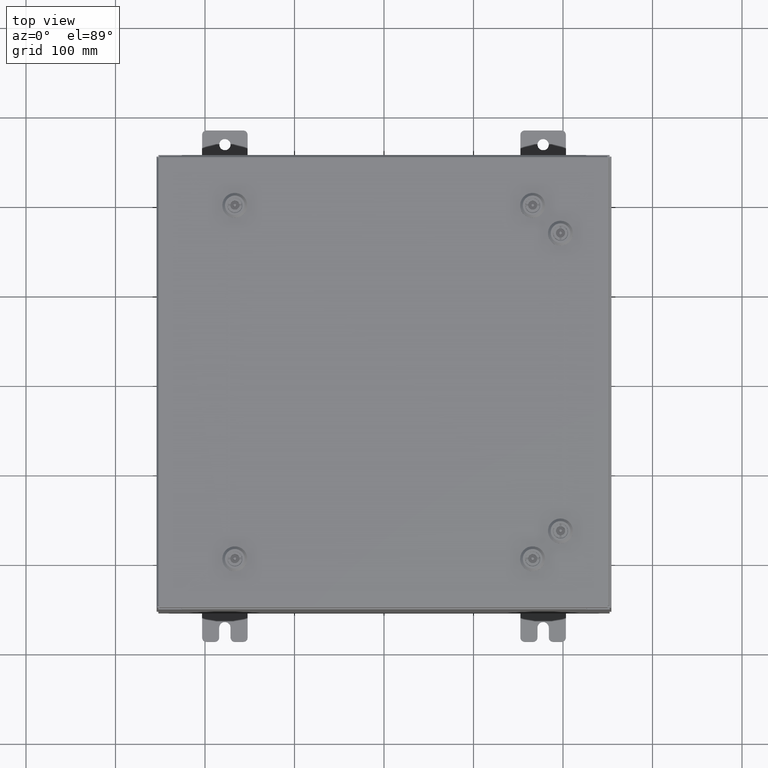
[diagram: clean part render]
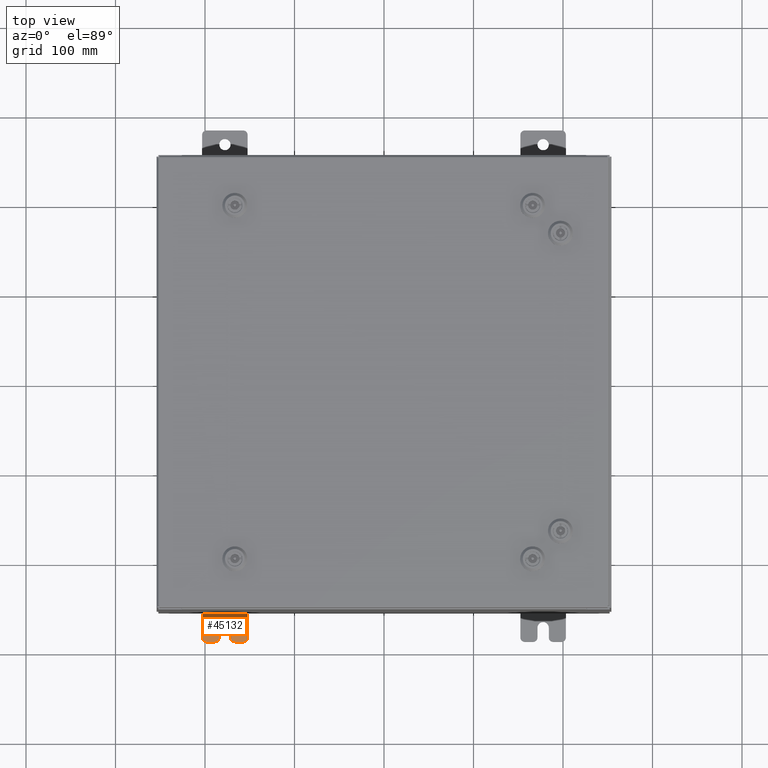
[diagram: same view with one face highlighted and labeled with its STEP entity id]
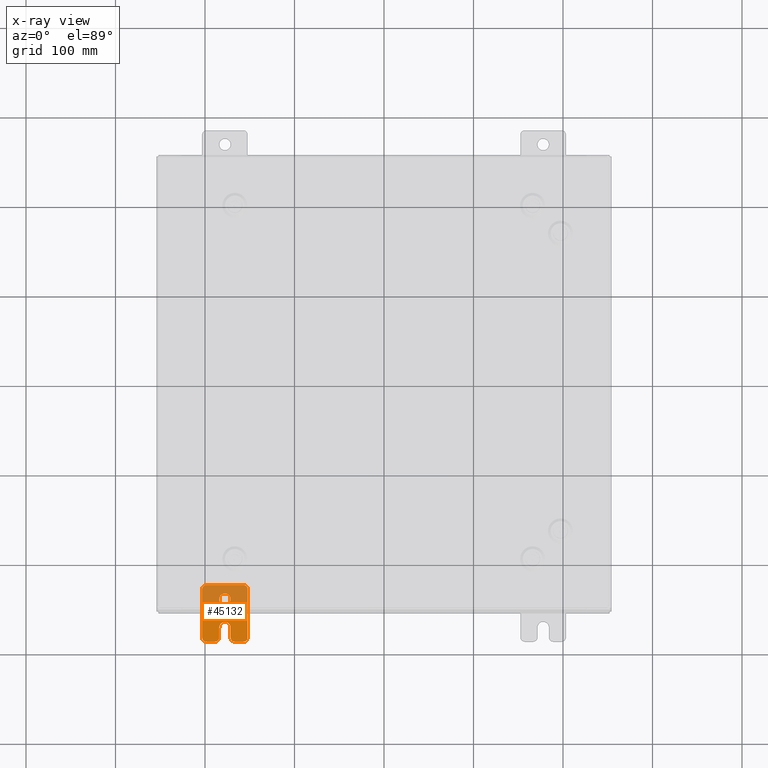
[diagram: x-ray of the same camera — body ghosted, the highlighted face saturated]
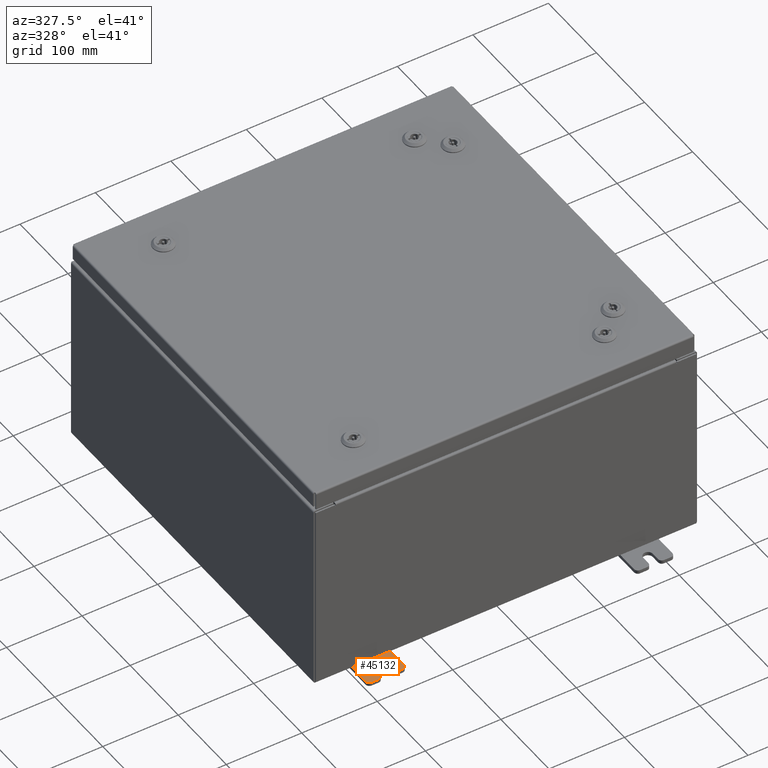
[diagram: same view with one face highlighted and labeled with its STEP entity id]
A machine part, top view. The second image highlights one B-rep face of the part: STEP entity #45132.
The next image is the same camera in x-ray: the body ghosted, the highlighted face saturated — about 50% of this face is hidden behind the body in this view.
A second angle (auxiliary view) of the same face is appended — the face is thin or edge-on in the first view.
In plain terms, the highlighted planar face has unit normal (0, 0, 1).
Its self-contained STEP definition (entity closure, byte-faithful):
#582 = LINE ( 'NONE', #5684, #26680 ) ;
#660 = ORIENTED_EDGE ( 'NONE', *, *, #15933, .F. ) ;
#927 = DIRECTION ( 'NONE',  ( 1.000000000000000000, 0.0000000000000000000, -0.0000000000000000000 ) ) ;
#1591 = VERTEX_POINT ( 'NONE', #61187 ) ;
#2158 = DIRECTION ( 'NONE',  ( 6.556435184794182400E-016, 1.000000000000000000, 0.0000000000000000000 ) ) ;
#2736 = EDGE_CURVE ( 'NONE', #20358, #1591, #57156, .T. ) ;
#3084 = EDGE_CURVE ( 'NONE', #11941, #46526, #61002, .T. ) ;
#3750 = ORIENTED_EDGE ( 'NONE', *, *, #44760, .T. ) ;
#4187 = EDGE_CURVE ( 'NONE', #36219, #38342, #30176, .T. ) ;
#4379 = CARTESIAN_POINT ( 'NONE',  ( 0.0000000000000000000, 1.249999999999994200, -1.000000000000010400 ) ) ;
#5429 = VERTEX_POINT ( 'NONE', #19488 ) ;
#5609 = CARTESIAN_POINT ( 'NONE',  ( 0.0000000000000000000, 0.0000000000000000000, 0.0000000000000000000 ) ) ;
#5684 = CARTESIAN_POINT ( 'NONE',  ( 4.780733988912460100E-016, -0.6249999999999993300, -0.2499999999999993900 ) ) ;
#5870 = CARTESIAN_POINT ( 'NONE',  ( 0.0000000000000000000, -1.250000000000003100, 0.4400000000000020000 ) ) ;
#6497 = DIRECTION ( 'NONE',  ( 1.000000000000000000, 0.0000000000000000000, -0.0000000000000000000 ) ) ;
#6809 = EDGE_CURVE ( 'NONE', #56834, #23097, #23786, .T. ) ;
#6860 = ORIENTED_EDGE ( 'NONE', *, *, #30997, .T. ) ;
#7862 = CARTESIAN_POINT ( 'NONE',  ( 0.0000000000000000000, -1.060000000000004100, -0.8100000000000050500 ) ) ;
#8036 = CARTESIAN_POINT ( 'NONE',  ( 4.039428427013647300E-016, 0.6249999999999992200, -9.783840404509077400E-018 ) ) ;
#8287 = AXIS2_PLACEMENT_3D ( 'NONE', #56460, #27102, #61410 ) ;
#9186 = VECTOR ( 'NONE', #22828, 39.37007874015748100 ) ;
#10315 = DIRECTION ( 'NONE',  ( 1.000000000000000000, 0.0000000000000000000, -0.0000000000000000000 ) ) ;
#10815 = CARTESIAN_POINT ( 'NONE',  ( 4.039428427013647300E-016, 0.6249999999999992200, -9.783840404509077400E-018 ) ) ;
#10928 = LINE ( 'NONE', #13450, #36994 ) ;
#11026 = CIRCLE ( 'NONE', #54267, 0.1900000000000011100 ) ;
#11368 = LINE ( 'NONE', #44679, #50445 ) ;
#11519 = VECTOR ( 'NONE', #32149, 39.37007874015748100 ) ;
#11557 = VERTEX_POINT ( 'NONE', #42396 ) ;
#11941 = VERTEX_POINT ( 'NONE', #12392 ) ;
#12392 = CARTESIAN_POINT ( 'NONE',  ( 4.168508244714285900E-016, 0.6249999999999992200, 0.2499999999999999200 ) ) ;
#12800 = AXIS2_PLACEMENT_3D ( 'NONE', #10815, #45069, #15764 ) ;
#13167 = AXIS2_PLACEMENT_3D ( 'NONE', #26065, #60374, #30958 ) ;
#13450 = CARTESIAN_POINT ( 'NONE',  ( 0.0000000000000000000, 1.249999999999997600, 0.9999999999999951200 ) ) ;
#14051 = DIRECTION ( 'NONE',  ( 0.0000000000000000000, 1.639108796198553600E-015, 1.000000000000000000 ) ) ;
#14120 = CARTESIAN_POINT ( 'NONE',  ( 0.0000000000000000000, -1.060000000000001200, 0.9999999999999988900 ) ) ;
#14599 = CARTESIAN_POINT ( 'NONE',  ( 0.0000000000000000000, 1.249999999999994700, -0.8100000000000092700 ) ) ;
#14879 = AXIS2_PLACEMENT_3D ( 'NONE', #14913, #34605, #39544 ) ;
#14913 = CARTESIAN_POINT ( 'NONE',  ( 0.0000000000000000000, -1.060000000000003400, -0.4400000000000005000 ) ) ;
#15340 = DIRECTION ( 'NONE',  ( 0.0000000000000000000, -1.639108796198553600E-015, -1.000000000000000000 ) ) ;
#15764 = DIRECTION ( 'NONE',  ( -5.163192708025533800E-017, 0.0000000000000000000, -1.000000000000000000 ) ) ;
#15933 = EDGE_CURVE ( 'NONE', #46526, #11941, #26413, .T. ) ;
#15976 = CARTESIAN_POINT ( 'NONE',  ( 1.928684683526964400E-016, -1.060000000000003400, -0.2499999999999994400 ) ) ;
#16119 = FACE_OUTER_BOUND ( 'NONE', #53799, .T. ) ;
#16210 = EDGE_CURVE ( 'NONE', #60360, #5429, #34791, .T. ) ;
#16421 = CIRCLE ( 'NONE', #39884, 0.1900000000000011100 ) ;
#16581 = EDGE_CURVE ( 'NONE', #38342, #11557, #11026, .T. ) ;
#16854 = EDGE_CURVE ( 'NONE', #51728, #36219, #16421, .T. ) ;
#17915 = CARTESIAN_POINT ( 'NONE',  ( 0.0000000000000000000, -1.250000000000005600, -1.000000000000006200 ) ) ;
#19150 = ORIENTED_EDGE ( 'NONE', *, *, #56288, .T. ) ;
#19452 = CARTESIAN_POINT ( 'NONE',  ( 0.0000000000000000000, -1.250000000000004700, -0.4400000000000002200 ) ) ;
#19488 = CARTESIAN_POINT ( 'NONE',  ( 1.928684683526972300E-016, -1.060000000000002100, 0.2500000000000005000 ) ) ;
#19547 = AXIS2_PLACEMENT_3D ( 'NONE', #35854, #6497, #40785 ) ;
#20358 = VERTEX_POINT ( 'NONE', #29693 ) ;
#21820 = EDGE_CURVE ( 'NONE', #28222, #43765, #55787, .T. ) ;
#22828 = DIRECTION ( 'NONE',  ( 0.0000000000000000000, 1.000000000000000000, -1.639108796198558100E-015 ) ) ;
#23097 = VERTEX_POINT ( 'NONE', #19452 ) ;
#23760 = ORIENTED_EDGE ( 'NONE', *, *, #4187, .T. ) ;
#23786 = CIRCLE ( 'NONE', #14879, 0.1900000000000011100 ) ;
#23807 = AXIS2_PLACEMENT_3D ( 'NONE', #8036, #29386, #30822 ) ;
#23826 = DIRECTION ( 'NONE',  ( 1.000000000000000000, 0.0000000000000000000, -0.0000000000000000000 ) ) ;
#26065 = CARTESIAN_POINT ( 'NONE',  ( 4.780733988912460100E-016, -0.6249999999999993300, 5.858939755051854500E-017 ) ) ;
#26413 = CIRCLE ( 'NONE', #12800, 0.2499999999999999200 ) ;
#26680 = VECTOR ( 'NONE', #30102, 39.37007874015748100 ) ;
#27102 = DIRECTION ( 'NONE',  ( 1.000000000000000000, 0.0000000000000000000, -0.0000000000000000000 ) ) ;
#28222 = VERTEX_POINT ( 'NONE', #14120 ) ;
#28280 = ORIENTED_EDGE ( 'NONE', *, *, #41793, .T. ) ;
#28463 = LINE ( 'NONE', #36423, #54566 ) ;
#28636 = VECTOR ( 'NONE', #14051, 39.37007874015748100 ) ;
#29386 = DIRECTION ( 'NONE',  ( 1.000000000000000000, -0.0000000000000000000, -5.163192708025532000E-017 ) ) ;
#29693 = CARTESIAN_POINT ( 'NONE',  ( 0.0000000000000000000, -1.250000000000005300, -0.8100000000000047200 ) ) ;
#30102 = DIRECTION ( 'NONE',  ( -6.556435184794182400E-016, -1.000000000000000000, -1.639108796198545600E-016 ) ) ;
#30176 = LINE ( 'NONE', #4379, #28636 ) ;
#30238 = PLANE ( 'NONE',  #40216 ) ;
#30661 = CARTESIAN_POINT ( 'NONE',  ( 3.910348609313009100E-016, 0.6249999999999992200, -0.2499999999999999200 ) ) ;
#30822 = DIRECTION ( 'NONE',  ( -5.163192708025533800E-017, 0.0000000000000000000, -1.000000000000000000 ) ) ;
#30954 = EDGE_LOOP ( 'NONE', ( #660, #31374 ) ) ;
#30958 = DIRECTION ( 'NONE',  ( -6.523827964459551700E-016, -1.000000000000000000, 0.0000000000000000000 ) ) ;
#30997 = EDGE_CURVE ( 'NONE', #43765, #60360, #61504, .T. ) ;
#31374 = ORIENTED_EDGE ( 'NONE', *, *, #3084, .F. ) ;
#32149 = DIRECTION ( 'NONE',  ( 0.0000000000000000000, -1.639108796198553600E-015, -1.000000000000000000 ) ) ;
#32444 = CARTESIAN_POINT ( 'NONE',  ( 4.780733988912460100E-016, -0.6249999999999993300, -0.2499999999999998600 ) ) ;
#32860 = VERTEX_POINT ( 'NONE', #35249 ) ;
#34605 = DIRECTION ( 'NONE',  ( 1.000000000000000000, 0.0000000000000000000, -0.0000000000000000000 ) ) ;
#34791 = CIRCLE ( 'NONE', #8287, 0.1900000000000011400 ) ;
#35178 = DIRECTION ( 'NONE',  ( -0.0000000000000000000, 0.0000000000000000000, -1.000000000000000000 ) ) ;
#35249 = CARTESIAN_POINT ( 'NONE',  ( 0.0000000000000000000, -0.6249999999999992200, 0.2500000000000005000 ) ) ;
#35854 = CARTESIAN_POINT ( 'NONE',  ( 0.0000000000000000000, -1.060000000000001600, 0.8099999999999978300 ) ) ;
#35997 = ORIENTED_EDGE ( 'NONE', *, *, #56212, .T. ) ;
#36201 = CARTESIAN_POINT ( 'NONE',  ( 0.0000000000000000000, -1.250000000000002400, 0.8099999999999980500 ) ) ;
#36219 = VERTEX_POINT ( 'NONE', #14599 ) ;
#36423 = CARTESIAN_POINT ( 'NONE',  ( 6.829619984160658000E-017, -1.250000000000003800, 0.2500000000000005000 ) ) ;
#36994 = VECTOR ( 'NONE', #47726, 39.37007874015748100 ) ;
#38075 = DIRECTION ( 'NONE',  ( 0.0000000000000000000, 0.0000000000000000000, -1.000000000000000000 ) ) ;
#38342 = VERTEX_POINT ( 'NONE', #40186 ) ;
#38607 = VERTEX_POINT ( 'NONE', #32444 ) ;
#39544 = DIRECTION ( 'NONE',  ( 0.0000000000000000000, 0.0000000000000000000, -1.000000000000000000 ) ) ;
#39654 = CARTESIAN_POINT ( 'NONE',  ( 0.0000000000000000000, 1.059999999999996300, 0.8099999999999938400 ) ) ;
#39884 = AXIS2_PLACEMENT_3D ( 'NONE', #53159, #23826, #58115 ) ;
#40186 = CARTESIAN_POINT ( 'NONE',  ( 0.0000000000000000000, 1.249999999999997300, 0.8099999999999935000 ) ) ;
#40216 = AXIS2_PLACEMENT_3D ( 'NONE', #5609, #927, #35178 ) ;
#40600 = FACE_BOUND ( 'NONE', #30954, .T. ) ;
#40603 = ORIENTED_EDGE ( 'NONE', *, *, #51251, .T. ) ;
#40771 = DIRECTION ( 'NONE',  ( 1.000000000000000000, 0.0000000000000000000, -0.0000000000000000000 ) ) ;
#40785 = DIRECTION ( 'NONE',  ( 0.0000000000000000000, 0.0000000000000000000, -1.000000000000000000 ) ) ;
#41793 = EDGE_CURVE ( 'NONE', #11557, #28222, #10928, .T. ) ;
#42396 = CARTESIAN_POINT ( 'NONE',  ( 0.0000000000000000000, 1.059999999999996500, 0.9999999999999953400 ) ) ;
#43765 = VERTEX_POINT ( 'NONE', #36201 ) ;
#44456 = ORIENTED_EDGE ( 'NONE', *, *, #47168, .T. ) ;
#44578 = DIRECTION ( 'NONE',  ( 0.0000000000000000000, 0.0000000000000000000, -1.000000000000000000 ) ) ;
#44679 = CARTESIAN_POINT ( 'NONE',  ( 0.0000000000000000000, -1.250000000000002200, 0.9999999999999992200 ) ) ;
#44760 = EDGE_CURVE ( 'NONE', #1591, #51728, #48277, .T. ) ;
#45069 = DIRECTION ( 'NONE',  ( 1.000000000000000000, -0.0000000000000000000, -5.163192708025532000E-017 ) ) ;
#45132 = ADVANCED_FACE ( 'NONE', ( #40600, #16119 ), #30238, .T. ) ;
#46526 = VERTEX_POINT ( 'NONE', #30661 ) ;
#47168 = EDGE_CURVE ( 'NONE', #23097, #20358, #11368, .T. ) ;
#47491 = ORIENTED_EDGE ( 'NONE', *, *, #21820, .T. ) ;
#47726 = DIRECTION ( 'NONE',  ( 0.0000000000000000000, -1.000000000000000000, 1.639108796198558100E-015 ) ) ;
#47992 = AXIS2_PLACEMENT_3D ( 'NONE', #7862, #40771, #38075 ) ;
#48091 = CIRCLE ( 'NONE', #13167, 0.2499999999999999200 ) ;
#48277 = LINE ( 'NONE', #17915, #9186 ) ;
#50445 = VECTOR ( 'NONE', #15340, 39.37007874015748100 ) ;
#51251 = EDGE_CURVE ( 'NONE', #5429, #32860, #28463, .T. ) ;
#51728 = VERTEX_POINT ( 'NONE', #54133 ) ;
#53159 = CARTESIAN_POINT ( 'NONE',  ( 0.0000000000000000000, 1.059999999999993600, -0.8100000000000089400 ) ) ;
#53624 = ORIENTED_EDGE ( 'NONE', *, *, #16210, .T. ) ;
#53799 = EDGE_LOOP ( 'NONE', ( #28280, #47491, #6860, #53624, #40603, #19150, #35997, #61393, #44456, #54460, #3750, #60653, #23760, #56736 ) ) ;
#54133 = CARTESIAN_POINT ( 'NONE',  ( 0.0000000000000000000, 1.059999999999993400, -1.000000000000010000 ) ) ;
#54267 = AXIS2_PLACEMENT_3D ( 'NONE', #39654, #10315, #44578 ) ;
#54460 = ORIENTED_EDGE ( 'NONE', *, *, #2736, .T. ) ;
#54566 = VECTOR ( 'NONE', #2158, 39.37007874015748100 ) ;
#55787 = CIRCLE ( 'NONE', #19547, 0.1900000000000011100 ) ;
#56212 = EDGE_CURVE ( 'NONE', #38607, #56834, #582, .T. ) ;
#56288 = EDGE_CURVE ( 'NONE', #32860, #38607, #48091, .T. ) ;
#56460 = CARTESIAN_POINT ( 'NONE',  ( 0.0000000000000000000, -1.060000000000002100, 0.4400000000000016700 ) ) ;
#56736 = ORIENTED_EDGE ( 'NONE', *, *, #16581, .T. ) ;
#56834 = VERTEX_POINT ( 'NONE', #15976 ) ;
#57156 = CIRCLE ( 'NONE', #47992, 0.1900000000000011100 ) ;
#58115 = DIRECTION ( 'NONE',  ( 0.0000000000000000000, 0.0000000000000000000, -1.000000000000000000 ) ) ;
#60360 = VERTEX_POINT ( 'NONE', #5870 ) ;
#60374 = DIRECTION ( 'NONE',  ( -1.000000000000000000, 6.523827964459549700E-016, 5.163192708025532000E-017 ) ) ;
#60653 = ORIENTED_EDGE ( 'NONE', *, *, #16854, .T. ) ;
#61002 = CIRCLE ( 'NONE', #23807, 0.2499999999999999200 ) ;
#61187 = CARTESIAN_POINT ( 'NONE',  ( 0.0000000000000000000, -1.060000000000004500, -1.000000000000006400 ) ) ;
#61393 = ORIENTED_EDGE ( 'NONE', *, *, #6809, .T. ) ;
#61410 = DIRECTION ( 'NONE',  ( 0.0000000000000000000, 0.0000000000000000000, -1.000000000000000000 ) ) ;
#61504 = LINE ( 'NONE', #61784, #11519 ) ;
#61784 = CARTESIAN_POINT ( 'NONE',  ( 0.0000000000000000000, -1.250000000000002200, 0.9999999999999992200 ) ) ;